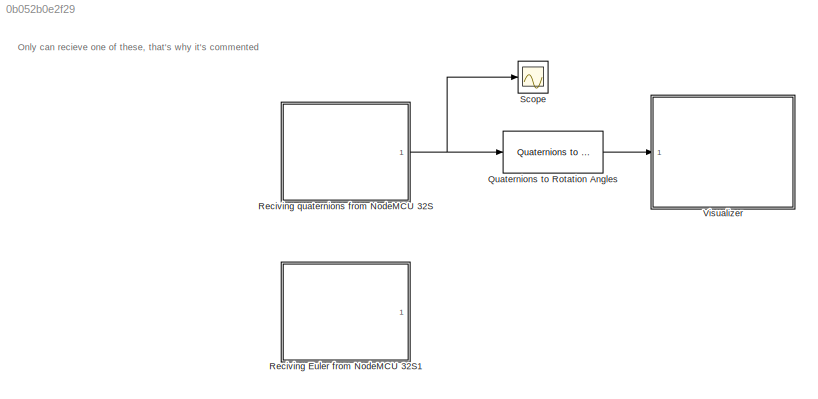
MODEL slx_0b052b0e2f29
KIND model
CONFIG AbsTol = auto
CONFIG EnableMultiTasking = off
CONFIG FixedStep = 0.01
CONFIG MaxStep = auto
CONFIG MinStep = auto
CONFIG RelTol = 1e-3
CONFIG SampleTimeConstraint = Unconstrained
CONFIG Solver = VariableStepAuto
CONFIG SolverName = VariableStepAuto
CONFIG StartTime = 0.0
CONFIG StopTime = inf
BLOCK [Reference] Quaternions to Rotation Angles  REF=sharedtransform/Quaternions to Rotation Angles
  AttributesFormatString = Rotation Order: %<rotationOrder>
  Ports = [1, 1]
  SourceBlock = sharedtransform/Quaternions to Rotation Angles
  SourceProductBaseCode = AE
  SourceProductName = Aerospace Blockset
  SourceType = Quat2Ang
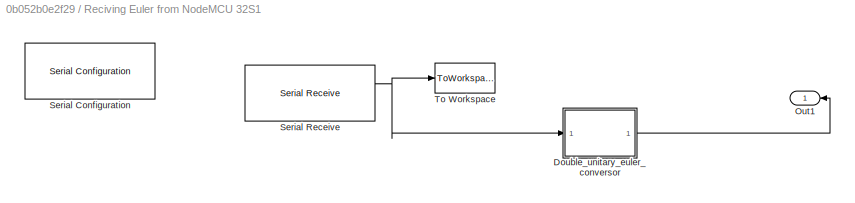
BLOCK [SubSystem] Reciving Euler from NodeMCU 32S1
  Commented = on
  Ports = [0, 1]
  RequestExecContextInheritance = off
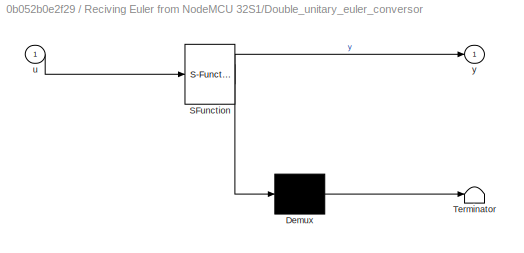
BLOCK [SubSystem] Reciving Euler from NodeMCU 32S1/Double_unitary_euler_conversor
  ErrorFcn = Stateflow.Translate.translate
  PermitHierarchicalResolution = ExplicitOnly
  Ports = [1, 1]
  RequestExecContextInheritance = off
  SFBlockType = MATLAB Function
  TreatAsAtomicUnit = on
BLOCK [Demux] Reciving Euler from NodeMCU 32S1/Double_unitary_euler_conversor/ Demux 
  Outputs = 1
  Ports = [1, 1]
BLOCK [S-Function] Reciving Euler from NodeMCU 32S1/Double_unitary_euler_conversor/ SFunction 
  EnableBusSupport = on
  FunctionName = sf_sfun
  PortCounts = [1 2]
  Ports = [1, 2]
  SFcnIsStateOwnerBlock = off
  SFunctionDeploymentMode = off
  Tag = Stateflow S-Function Quaternion_from_NodeMCU 1
BLOCK [Terminator] Reciving Euler from NodeMCU 32S1/Double_unitary_euler_conversor/ Terminator 
BLOCK [Inport] Reciving Euler from NodeMCU 32S1/Double_unitary_euler_conversor/u
  IconDisplay = Port number
BLOCK [Outport] Reciving Euler from NodeMCU 32S1/Double_unitary_euler_conversor/y
  IconDisplay = Port number
BLOCK [Outport] Reciving Euler from NodeMCU 32S1/Out1
  IconDisplay = Port number
BLOCK [Reference] Reciving Euler from NodeMCU 32S1/Serial Configuration  REF=instrumentlib/Serial Configuration
  Ports = []
  Priority = -200000
  SourceBlock = instrumentlib/Serial Configuration
  SourceProductBaseCode = IC
  SourceProductName = Instrument Control Toolbox
  SourceType = Serial Configuration
BLOCK [Reference] Reciving Euler from NodeMCU 32S1/Serial Receive  REF=instrumentlib/Serial Receive
  Ports = [0, 2]
  SourceBlock = instrumentlib/Serial Receive
  SourceProductBaseCode = IC
  SourceProductName = Instrument Control Toolbox
  SourceType = Serial Receive
BLOCK [ToWorkspace] Reciving Euler from NodeMCU 32S1/To Workspace
  FixptAsFi = on
  MaxDataPoints = inf
  Ports = [1]
  SampleTime = -1
  Save2DSignal = 3-D array (concatenate along third dimension)
  SaveFormat = Timeseries
  VariableName = A
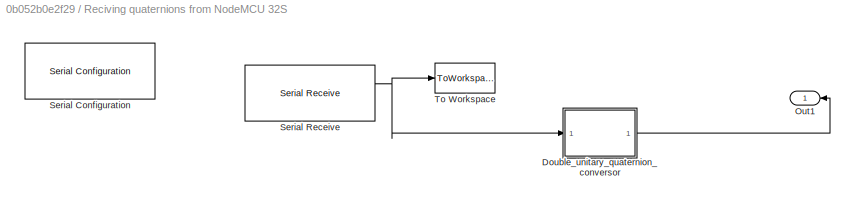
BLOCK [SubSystem] Reciving quaternions from NodeMCU 32S
  Ports = [0, 1]
  RequestExecContextInheritance = off
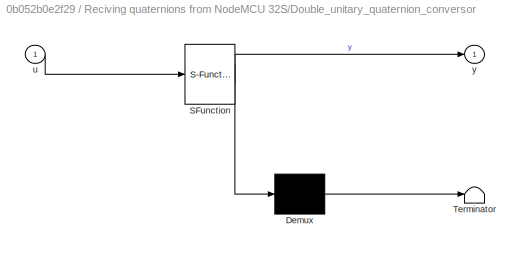
BLOCK [SubSystem] Reciving quaternions from NodeMCU 32S/Double_unitary_quaternion_conversor
  ErrorFcn = Stateflow.Translate.translate
  PermitHierarchicalResolution = ExplicitOnly
  Ports = [1, 1]
  RequestExecContextInheritance = off
  SFBlockType = MATLAB Function
  TreatAsAtomicUnit = on
BLOCK [Demux] Reciving quaternions from NodeMCU 32S/Double_unitary_quaternion_conversor/ Demux 
  Outputs = 1
  Ports = [1, 1]
BLOCK [S-Function] Reciving quaternions from NodeMCU 32S/Double_unitary_quaternion_conversor/ SFunction 
  EnableBusSupport = on
  FunctionName = sf_sfun
  PortCounts = [1 2]
  Ports = [1, 2]
  SFcnIsStateOwnerBlock = off
  SFunctionDeploymentMode = off
  Tag = Stateflow S-Function Quaternion_from_NodeMCU 2
BLOCK [Terminator] Reciving quaternions from NodeMCU 32S/Double_unitary_quaternion_conversor/ Terminator 
BLOCK [Inport] Reciving quaternions from NodeMCU 32S/Double_unitary_quaternion_conversor/u
  IconDisplay = Port number
BLOCK [Outport] Reciving quaternions from NodeMCU 32S/Double_unitary_quaternion_conversor/y
  IconDisplay = Port number
BLOCK [Outport] Reciving quaternions from NodeMCU 32S/Out1
  IconDisplay = Port number
BLOCK [Reference] Reciving quaternions from NodeMCU 32S/Serial Configuration  REF=instrumentlib/Serial Configuration
  Ports = []
  Priority = -200000
  SourceBlock = instrumentlib/Serial Configuration
  SourceProductBaseCode = IC
  SourceProductName = Instrument Control Toolbox
  SourceType = Serial Configuration
BLOCK [Reference] Reciving quaternions from NodeMCU 32S/Serial Receive  REF=instrumentlib/Serial Receive
  Ports = [0, 2]
  SourceBlock = instrumentlib/Serial Receive
  SourceProductBaseCode = IC
  SourceProductName = Instrument Control Toolbox
  SourceType = Serial Receive
BLOCK [ToWorkspace] Reciving quaternions from NodeMCU 32S/To Workspace
  FixptAsFi = on
  MaxDataPoints = inf
  Ports = [1]
  SampleTime = -1
  Save2DSignal = 3-D array (concatenate along third dimension)
  SaveFormat = Timeseries
  VariableName = A
BLOCK [Scope] Scope
  Floating = off
  NumInputPorts = 1
  Ports = [1]
  ScopeSpecificationString = Simulink.scopes.TimeScopeBlockCfg('CurrentConfiguration', extmgr.ConfigurationSet(extmgr.Configuration('Core','General UI',true),extmgr.Configuration('Core','Source UI',true),extmgr.Configuration('Sources','WiredSimulink',true),extmgr.Configuration('Visuals','Time Domain',true,'SerializedDisplays',{struct('MinYLimReal','0.40637','MaxYLimReal','1.04853','YLabelReal','','MinYLimMag','0.40637','MaxYL...<+1560ch>
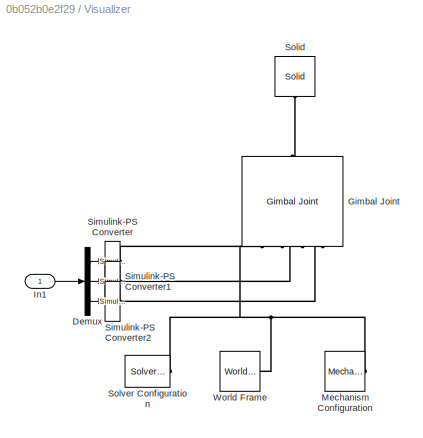
BLOCK [SubSystem] Visualizer
  Ports = [1]
  RequestExecContextInheritance = off
BLOCK [Demux] Visualizer/Demux
  DisplayOption = bar
  Outputs = 3
  Ports = [1, 3]
BLOCK [Reference] Visualizer/Gimbal Joint  REF=sm_lib/Joints/Gimbal Joint
  Ports = [0, 0, 0, 0, 0, 4, 1]
  SourceBlock = sm_lib/Joints/Gimbal Joint
  SourceProductBaseCode = MS
  SourceProductName = Simscape Multibody
  SourceType = Gimbal Joint
BLOCK [Inport] Visualizer/In1
  IconDisplay = Port number
BLOCK [Reference] Visualizer/Mechanism Configuration  REF=sm_lib/Utilities/Mechanism
Configuration
  Ports = [0, 0, 0, 0, 0, 0, 1]
  SourceBlock = sm_lib/Utilities/Mechanism\nConfiguration
  SourceProductBaseCode = MS
  SourceProductName = Simscape Multibody
  SourceType = Mechanism\nConfiguration
BLOCK [Reference] Visualizer/Simulink-PS Converter  REF=nesl_utility/Simulink-PS
Converter
  Ports = [1, 0, 0, 0, 0, 0, 1]
  SourceBlock = nesl_utility/Simulink-PS\nConverter
  SourceProductBaseCode = SS
  SourceProductName = Simscape
  SourceType = Simulink-PS\nConverter
BLOCK [Reference] Visualizer/Simulink-PS Converter1  REF=nesl_utility/Simulink-PS
Converter
  Ports = [1, 0, 0, 0, 0, 0, 1]
  SourceBlock = nesl_utility/Simulink-PS\nConverter
  SourceProductBaseCode = SS
  SourceProductName = Simscape
  SourceType = Simulink-PS\nConverter
BLOCK [Reference] Visualizer/Simulink-PS Converter2  REF=nesl_utility/Simulink-PS
Converter
  Ports = [1, 0, 0, 0, 0, 0, 1]
  SourceBlock = nesl_utility/Simulink-PS\nConverter
  SourceProductBaseCode = SS
  SourceProductName = Simscape
  SourceType = Simulink-PS\nConverter
BLOCK [Reference] Visualizer/Solid  REF=sm_lib/Body Elements/Solid
  Ports = [0, 0, 0, 0, 0, 0, 1]
  SourceBlock = sm_lib/Body Elements/Solid
  SourceProductBaseCode = MS
  SourceProductName = Simscape Multibody
  SourceType = Solid
BLOCK [Reference] Visualizer/Solver Configuration  REF=nesl_utility/Solver
Configuration
  Ports = [0, 0, 0, 0, 0, 0, 1]
  SourceBlock = nesl_utility/Solver\nConfiguration
  SourceProductBaseCode = SS
  SourceProductName = Simscape
  SourceType = Solver\nConfiguration
BLOCK [Reference] Visualizer/World Frame  REF=sm_lib/Frames and
Transforms/World Frame
  Ports = [0, 0, 0, 0, 0, 0, 1]
  SourceBlock = sm_lib/Frames and\nTransforms/World Frame
  SourceProductBaseCode = MS
  SourceProductName = Simscape Multibody
  SourceType = World Frame
ANNOTATION (root): Only can recieve one of these, that's why it's commented
LINE Quaternions to Rotation Angles:1 -> Visualizer:1
LINE Reciving Euler from NodeMCU 32S1/Double_unitary_euler_conversor:1 -> Reciving Euler from NodeMCU 32S1/Out1:1
NET Reciving Euler from NodeMCU 32S1/Serial Receive:1 -> Reciving Euler from NodeMCU 32S1/Double_unitary_euler_conversor:1, Reciving Euler from NodeMCU 32S1/To Workspace:1
LINE Reciving quaternions from NodeMCU 32S/Double_unitary_quaternion_conversor:1 -> Reciving quaternions from NodeMCU 32S/Out1:1
NET Reciving quaternions from NodeMCU 32S/Serial Receive:1 -> Reciving quaternions from NodeMCU 32S/Double_unitary_quaternion_conversor:1, Reciving quaternions from NodeMCU 32S/To Workspace:1
NET Reciving quaternions from NodeMCU 32S:1 -> Quaternions to Rotation Angles:1, Scope:1
LINE Visualizer/Demux:1 -> Visualizer/Simulink-PS Converter:1
LINE Visualizer/Demux:2 -> Visualizer/Simulink-PS Converter1:1
LINE Visualizer/Demux:3 -> Visualizer/Simulink-PS Converter2:1
LINE Visualizer/In1:1 -> Visualizer/Demux:1
PNET net1: Visualizer/Gimbal Joint:LConn1 -- Visualizer/Mechanism Configuration:RConn1 -- Visualizer/Solver Configuration:RConn1 -- Visualizer/World Frame:RConn1
PLINE Visualizer/Gimbal Joint:LConn2 -- Visualizer/Simulink-PS Converter:RConn1
PLINE Visualizer/Gimbal Joint:LConn3 -- Visualizer/Simulink-PS Converter1:RConn1
PLINE Visualizer/Gimbal Joint:LConn4 -- Visualizer/Simulink-PS Converter2:RConn1
PLINE Visualizer/Gimbal Joint:RConn1 -- Visualizer/Solid:RConn1
note: NET lines group one-source signal fan-out (src -> all destinations, sorted); 1:1 wires keep LINE; PNET lines group multi-terminal physical nets as a canonical sorted terminal list (undirected conserving connections); 2-terminal nets keep the pairwise PLINE form
CHART Reciving Euler from NodeMCU 32S1/Double_unitary_euler_conversor states=1 transitions=1
  STATE_LABEL 'eML_blk_kernel()'
  STATE_LABEL 'SCRIPT:\nfunction y = fcn(u)\n\ny = (360*double(u)/255)-180 ;\n\ny = y*pi/180; % Conversion to radians\n'
CHART Reciving quaternions from NodeMCU 32S/Double_unitary_quaternion_conversor states=1 transitions=1
  STATE_LABEL 'eML_blk_kernel()'
  STATE_LABEL 'SCRIPT:\nfunction y = fcn(u)\n\ny = (double(u)-127)/127 ;\n'
